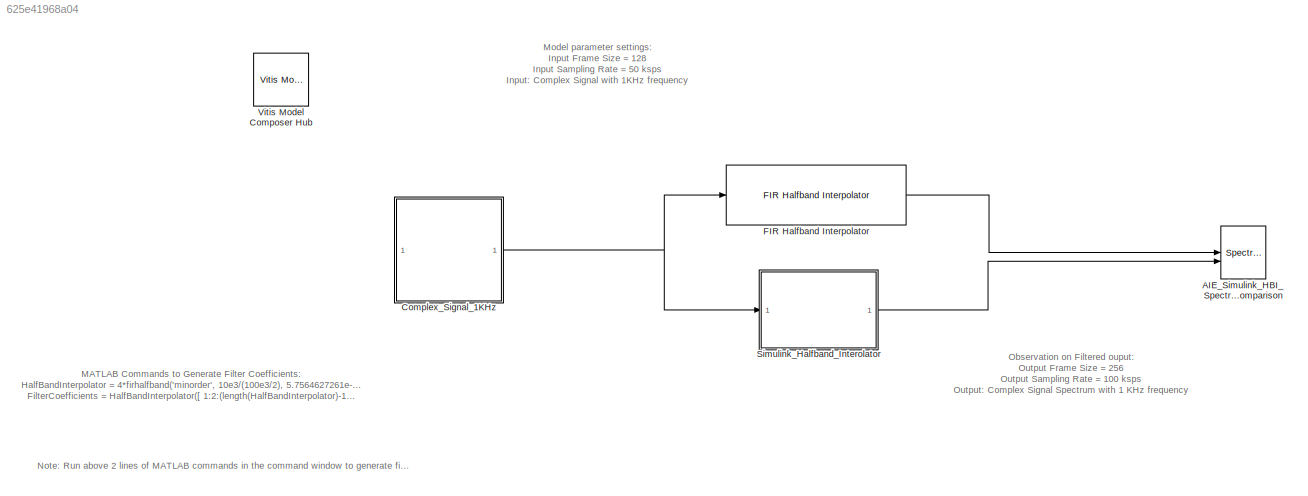
MODEL slx_625e41968a04
KIND model
CONFIG AbsTol = auto
CONFIG EnableMultiTasking = off
CONFIG FixedStep = auto
CONFIG MaxStep = auto
CONFIG MinStep = auto
CONFIG RelTol = 1e-3
CONFIG SampleTimeConstraint = Unconstrained
CONFIG SolverName = VariableStepAuto
CONFIG StartTime = 0.0
CONFIG StopTime = 0.2
BLOCK [SpectrumAnalyzer] AIE_Simulink_HBI_Spectrum_Comparison
  AllowFFTLengthLessThanSamplesPerUpdate = on
  AveragingMethod = Exponential
  ChannelNames = [""]
  DefaultConfigurationName = spbscopes.SpectrumAnalyzerBlockCfg
  NumInputPorts = 2
  ScopeSpecificationString = spbscopes.SpectrumAnalyzerBlockCfg('CurrentConfiguration', extmgr.ConfigurationSet(extmgr.Configuration('Core','General UI',true,'FigureColor',[0.16        0.16        0.16]),extmgr.Configuration('Visuals','Spectrum',true,'Title','','YLabel','','MinYLim','-49.5027','MaxYLim','28.8768','Legend',true,'AxesProperties',struct('XGrid',{'on','on'},'YGrid',{'on','on'},'ZGrid',{'on','on'},'Color',{[0 0 0]...<+2401ch>
  ShowLegend = on
  WasSavedAsWebScope = on
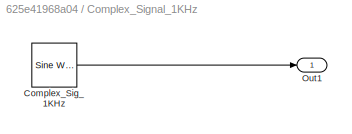
BLOCK [SubSystem] Complex_Signal_1KHz 
BLOCK [Reference] Complex_Signal_1KHz /Complex_Sig_1KHz  REF=dspsrcs4/Sine Wave
  SourceBlock = dspsrcs4/Sine Wave
  SourceType = Sine Wave
BLOCK [Outport] Complex_Signal_1KHz /Out1
BLOCK [Reference] FIR Halfband Interpolator  REF=aieDSP/FIR Halfband Interpolator
  SourceBlock = aieDSP/FIR Halfband Interpolator
  SourceType = FIR Halfband Interpolator
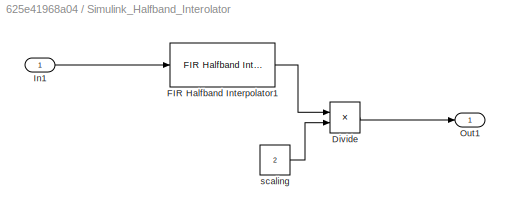
BLOCK [SubSystem] Simulink_Halfband_Interolator
BLOCK [Product] Simulink_Halfband_Interolator/Divide
  Inputs = **
BLOCK [Reference] Simulink_Halfband_Interolator/FIR Halfband Interpolator1  REF=dspmlti4/FIR Halfband
Interpolator
  SourceBlock = dspmlti4/FIR Halfband\nInterpolator
  SourceType = dsp.simulink.FIRHalfbandInterpolator
BLOCK [Inport] Simulink_Halfband_Interolator/In1
BLOCK [Outport] Simulink_Halfband_Interolator/Out1
BLOCK [Constant] Simulink_Halfband_Interolator/scaling
  OutDataTypeStr = single
  Value = 2
BLOCK [Reference] Vitis Model Composer Hub  REF=vmcUtilities/Vitis Model Composer Hub
  SourceBlock = vmcUtilities/Vitis Model Composer Hub
  SourceType = VMC Hub
  Tag = genX
  UserDataPersistent = on
ANNOTATION (root): Note : Run above 2 lines of MATLAB commands in the command window to generate filter coefficients
ANNOTATION (root): MATLAB Commands to Generate Filter Coefficients: HalfBandInterpolator = 4*firhalfband( 'minorder' , 10e3/(100e3/2), 5.7564627261e-05); FilterCoefficients = HalfBandInterpolator([ 1:2:(length(HalfBandInterpolator)-1)/2 (length(HalfBandInterpolator)+1)/2]);
ANNOTATION (root): Model parameter settings: Input Frame Size = 128 Input Sampling Rate = 50 ksps Input: Complex Signal with 1KHz frequency
ANNOTATION (root): Observation on Filtered ouput: Output Frame Size = 256 Output Sampling Rate = 100 ksps Output: Complex Signal Spectrum with 1 KHz frequency
LINE Complex_Signal_1KHz /Complex_Sig_1KHz:1 -> Complex_Signal_1KHz /Out1:1
NET Complex_Signal_1KHz :1 -> FIR Halfband Interpolator:1, Simulink_Halfband_Interolator:1
LINE FIR Halfband Interpolator:1 -> AIE_Simulink_HBI_Spectrum_Comparison:1
LINE Simulink_Halfband_Interolator/Divide:1 -> Simulink_Halfband_Interolator/Out1:1
LINE Simulink_Halfband_Interolator/FIR Halfband Interpolator1:1 -> Simulink_Halfband_Interolator/Divide:1
LINE Simulink_Halfband_Interolator/In1:1 -> Simulink_Halfband_Interolator/FIR Halfband Interpolator1:1
LINE Simulink_Halfband_Interolator/scaling:1 -> Simulink_Halfband_Interolator/Divide:2
LINE Simulink_Halfband_Interolator:1 -> AIE_Simulink_HBI_Spectrum_Comparison:2
note: NET lines group one-source signal fan-out (src -> all destinations, sorted); 1:1 wires keep LINE
